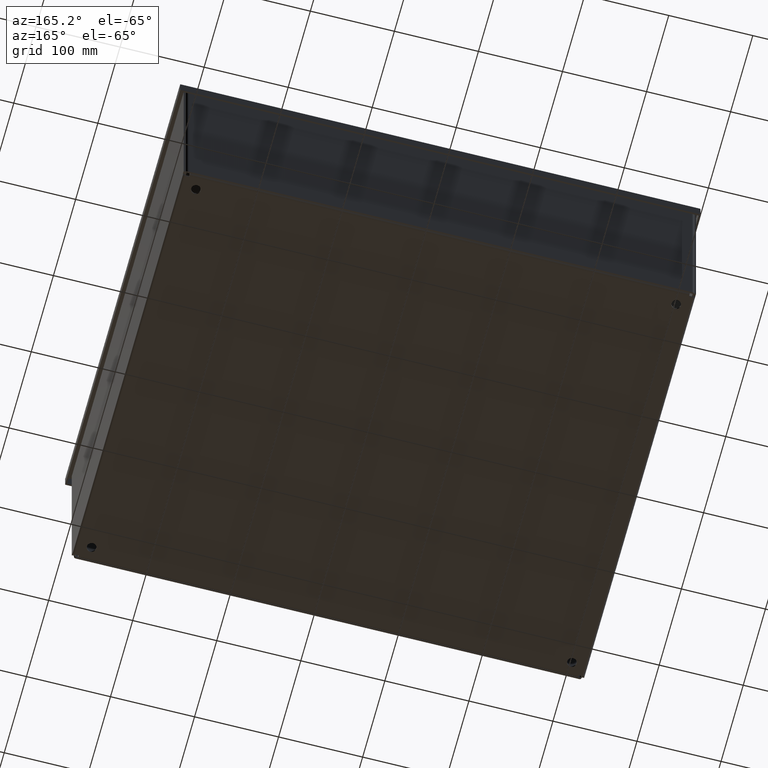
[diagram: clean part render]
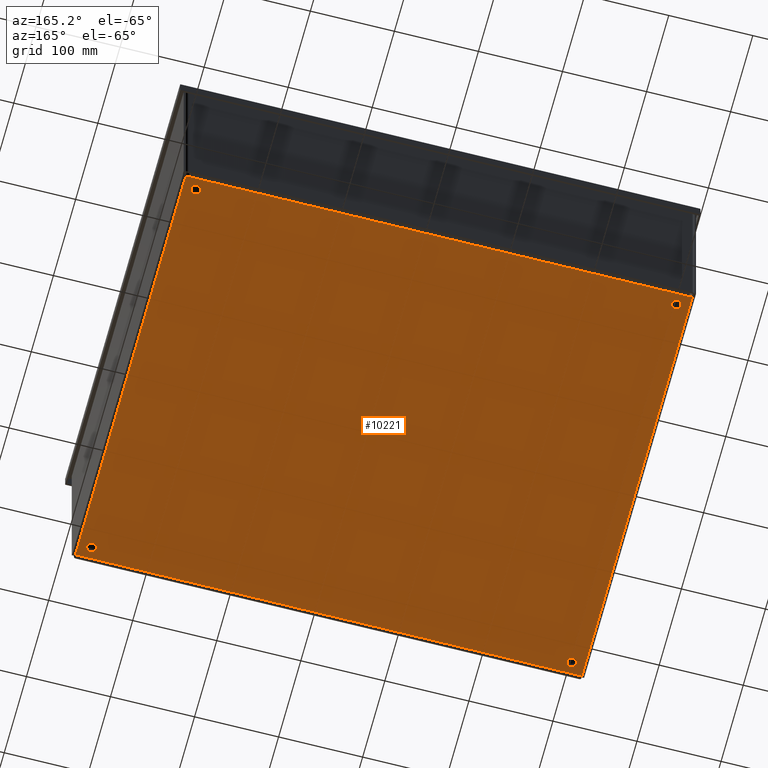
[diagram: same view with one face highlighted and labeled with its STEP entity id]
A machine part, auxiliary view. The second image highlights one B-rep face of the part: STEP entity #10221.
In plain terms, the highlighted planar face has unit normal (0, 0, 1).
Its self-contained STEP definition (entity closure, byte-faithful):
#369=LINE('',#14923,#1298);
#379=LINE('',#14941,#1308);
#432=LINE('',#15069,#1361);
#435=LINE('',#15075,#1364);
#438=LINE('',#15084,#1367);
#442=LINE('',#15098,#1371);
#447=LINE('',#15109,#1376);
#449=LINE('',#15113,#1378);
#1298=VECTOR('',#11916,23.4202216703159);
#1308=VECTOR('',#11936,23.4202216703159);
#1361=VECTOR('',#12055,0.153389164842068);
#1364=VECTOR('',#12060,0.153389164842071);
#1367=VECTOR('',#12071,19.579);
#1371=VECTOR('',#12091,19.579);
#1376=VECTOR('',#12106,0.153389164842068);
#1378=VECTOR('',#12112,0.153389164842074);
#2239=PLANE('',#10880);
#2550=FACE_BOUND('',#3333,.T.);
#2551=FACE_BOUND('',#3334,.T.);
#2552=FACE_BOUND('',#3335,.T.);
#2553=FACE_BOUND('',#3336,.T.);
#2712=FACE_OUTER_BOUND('',#3332,.T.);
#3332=EDGE_LOOP('',(#6994,#6995,#6996,#6997,#6998,#6999,#7000,#7001));
#3333=EDGE_LOOP('',(#7002));
#3334=EDGE_LOOP('',(#7003));
#3335=EDGE_LOOP('',(#7004));
#3336=EDGE_LOOP('',(#7005));
#3953=CIRCLE('',#10807,0.21875);
#3955=CIRCLE('',#10810,0.21875);
#3957=CIRCLE('',#10813,0.21875);
#3959=CIRCLE('',#10816,0.21875);
#4339=VERTEX_POINT('',#14801);
#4344=VERTEX_POINT('',#14812);
#4347=VERTEX_POINT('',#14819);
#4352=VERTEX_POINT('',#14830);
#4392=VERTEX_POINT('',#14956);
#4394=VERTEX_POINT('',#14961);
#4396=VERTEX_POINT('',#14966);
#4398=VERTEX_POINT('',#14971);
#4429=VERTEX_POINT('',#15068);
#4431=VERTEX_POINT('',#15074);
#4433=VERTEX_POINT('',#15083);
#4435=VERTEX_POINT('',#15089);
#5290=EDGE_CURVE('',#4347,#4352,#369,.T.);
#5300=EDGE_CURVE('',#4339,#4344,#379,.T.);
#5308=EDGE_CURVE('',#4392,#4392,#3953,.T.);
#5310=EDGE_CURVE('',#4394,#4394,#3955,.T.);
#5312=EDGE_CURVE('',#4396,#4396,#3957,.T.);
#5314=EDGE_CURVE('',#4398,#4398,#3959,.T.);
#5361=EDGE_CURVE('',#4429,#4339,#432,.T.);
#5364=EDGE_CURVE('',#4431,#4347,#435,.T.);
#5369=EDGE_CURVE('',#4433,#4429,#438,.T.);
#5378=EDGE_CURVE('',#4435,#4431,#442,.T.);
#5384=EDGE_CURVE('',#4344,#4435,#447,.T.);
#5386=EDGE_CURVE('',#4352,#4433,#449,.T.);
#6994=ORIENTED_EDGE('',*,*,#5361,.T.);
#6995=ORIENTED_EDGE('',*,*,#5300,.T.);
#6996=ORIENTED_EDGE('',*,*,#5384,.T.);
#6997=ORIENTED_EDGE('',*,*,#5378,.T.);
#6998=ORIENTED_EDGE('',*,*,#5364,.T.);
#6999=ORIENTED_EDGE('',*,*,#5290,.T.);
#7000=ORIENTED_EDGE('',*,*,#5386,.T.);
#7001=ORIENTED_EDGE('',*,*,#5369,.T.);
#7002=ORIENTED_EDGE('',*,*,#5308,.T.);
#7003=ORIENTED_EDGE('',*,*,#5310,.T.);
#7004=ORIENTED_EDGE('',*,*,#5312,.T.);
#7005=ORIENTED_EDGE('',*,*,#5314,.T.);
#10221=ADVANCED_FACE('',(#2712,#2550,#2551,#2552,#2553),#2239,.F.);
#10807=AXIS2_PLACEMENT_3D('',#14957,#11951,#11952);
#10810=AXIS2_PLACEMENT_3D('',#14962,#11957,#11958);
#10813=AXIS2_PLACEMENT_3D('',#14967,#11963,#11964);
#10816=AXIS2_PLACEMENT_3D('',#14972,#11969,#11970);
#10880=AXIS2_PLACEMENT_3D('',#15154,#12173,#12174);
#11916=DIRECTION('',(1.,2.3334131421881E-16,0.));
#11936=DIRECTION('',(-1.,-1.16670657109405E-16,0.));
#11951=DIRECTION('center_axis',(0.,0.,1.));
#11952=DIRECTION('ref_axis',(1.,0.,0.));
#11957=DIRECTION('center_axis',(0.,0.,1.));
#11958=DIRECTION('ref_axis',(1.,0.,0.));
#11963=DIRECTION('center_axis',(0.,0.,1.));
#11964=DIRECTION('ref_axis',(1.,0.,0.));
#11969=DIRECTION('center_axis',(0.,0.,1.));
#11970=DIRECTION('ref_axis',(1.,0.,0.));
#12055=DIRECTION('',(-1.,-1.16670657109405E-16,0.));
#12060=DIRECTION('',(1.,2.3334131421881E-16,0.));
#12071=DIRECTION('',(0.,-1.,0.));
#12091=DIRECTION('',(0.,1.,0.));
#12106=DIRECTION('',(-1.,-1.16670657109405E-16,0.));
#12112=DIRECTION('',(1.,2.3334131421881E-16,0.));
#12173=DIRECTION('center_axis',(0.,0.,1.));
#12174=DIRECTION('ref_axis',(0.,-1.,0.));
#14801=CARTESIAN_POINT('',(11.7101108351579,-9.7895,0.));
#14812=CARTESIAN_POINT('',(-11.7101108351579,-9.7895,0.));
#14819=CARTESIAN_POINT('',(-11.7101108351579,9.78949999999967,0.));
#14830=CARTESIAN_POINT('',(11.7101108351579,9.78949999999968,0.));
#14923=CARTESIAN_POINT('',(-5.93175,9.7895,0.));
#14941=CARTESIAN_POINT('',(5.93175,-9.7895,0.));
#14956=CARTESIAN_POINT('',(11.03125,-9.24999999999998,0.));
#14957=CARTESIAN_POINT('Origin',(11.25,-9.24999999999998,0.));
#14961=CARTESIAN_POINT('',(11.03125,9.24999999999999,0.));
#14962=CARTESIAN_POINT('Origin',(11.25,9.24999999999999,0.));
#14966=CARTESIAN_POINT('',(-11.46875,9.25,0.));
#14967=CARTESIAN_POINT('Origin',(-11.25,9.25,0.));
#14971=CARTESIAN_POINT('',(-11.46875,-9.25000000000001,0.));
#14972=CARTESIAN_POINT('Origin',(-11.25,-9.25000000000001,0.));
#15068=CARTESIAN_POINT('',(11.8635,-9.7895,-2.18547839493141E-17));
#15069=CARTESIAN_POINT('',(5.93175,-9.7895,0.));
#15074=CARTESIAN_POINT('',(-11.8635,9.78949999999999,-2.18547839493141E-17));
#15075=CARTESIAN_POINT('',(-5.93175,9.7895,0.));
#15083=CARTESIAN_POINT('',(11.8635,9.7895,-2.18547839493141E-17));
#15084=CARTESIAN_POINT('',(11.8635,4.926,0.));
#15089=CARTESIAN_POINT('',(-11.8635,-9.7895,-2.18547839493141E-17));
#15098=CARTESIAN_POINT('',(-11.8635,-4.926,0.));
#15109=CARTESIAN_POINT('',(5.93175,-9.7895,0.));
#15113=CARTESIAN_POINT('',(-5.93175,9.7895,0.));
#15154=CARTESIAN_POINT('Origin',(1.3987061727561E-15,-2.79741234551221E-15,
0.));